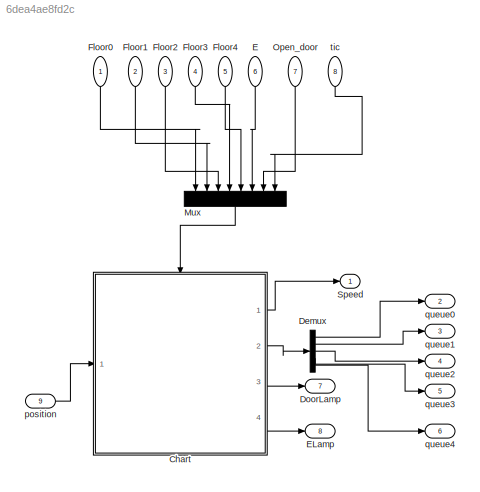
MODEL slx_6dea4ae8fd2c
KIND model
CONFIG AbsTol = auto
CONFIG EnableMultiTasking = off
CONFIG FixedStep = 0.1
CONFIG MaxStep = auto
CONFIG MinStep = auto
CONFIG RelTol = 1e-3
CONFIG SampleTimeConstraint = Unconstrained
CONFIG Solver = FixedStepAuto
CONFIG SolverName = FixedStepAuto
CONFIG StartTime = 0.0
CONFIG StopTime = inf
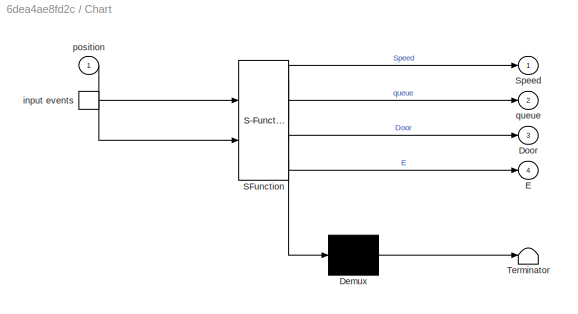
BLOCK [SubSystem] Chart
  ErrorFcn = Stateflow.Translate.translate
  PermitHierarchicalResolution = ExplicitOnly
  Ports = [1, 4, 0, 1]
  RequestExecContextInheritance = off
  SFBlockType = Chart
  TreatAsAtomicUnit = on
BLOCK [Demux] Chart/ Demux 
  Outputs = 1
  Ports = [1, 1]
BLOCK [S-Function] Chart/ SFunction 
  EnableBusSupport = on
  FunctionName = sf_sfun
  PortCounts = [2 5]
  Ports = [2, 5]
  SFcnIsStateOwnerBlock = off
  SFunctionDeploymentMode = off
  Tag = Stateflow S-Function 3
BLOCK [Terminator] Chart/ Terminator 
BLOCK [Outport] Chart/Door
  Port = 3
BLOCK [Outport] Chart/E
  Port = 4
BLOCK [Outport] Chart/Speed
BLOCK [TriggerPort] Chart/input events
  Ports = [0, 1]
  ShowOutputPort = on
  StatesWhenEnabling = held
  VariantControl = (inherit)
BLOCK [Inport] Chart/position
BLOCK [Outport] Chart/queue
  Port = 2
BLOCK [Demux] Demux
  Outputs = 5
  Ports = [1, 5]
BLOCK [Outport] DoorLamp
  Port = 7
BLOCK [Inport] E
  NameLocation = top
  Port = 6
BLOCK [Outport] ELamp
  Port = 8
BLOCK [Inport] Floor0
  NameLocation = top
BLOCK [Inport] Floor1
  NameLocation = top
  Port = 2
BLOCK [Inport] Floor2
  NameLocation = top
  Port = 3
BLOCK [Inport] Floor3
  NameLocation = top
  Port = 4
BLOCK [Inport] Floor4
  NameLocation = top
  Port = 5
BLOCK [Mux] Mux
  DisplayOption = bar
  Inputs = 8
  NameLocation = left
  Ports = [8, 1]
BLOCK [Inport] Open_door
  NameLocation = top
  Port = 7
BLOCK [Outport] Speed
BLOCK [Inport] position
  Port = 9
BLOCK [Outport] queue0
  Port = 2
BLOCK [Outport] queue1
  Port = 3
BLOCK [Outport] queue2
  Port = 4
BLOCK [Outport] queue3
  Port = 5
BLOCK [Outport] queue4
  Port = 6
BLOCK [Inport] tic
  NameLocation = top
  Port = 8
LINE Chart:1 -> Speed:1
LINE Chart:2 -> Demux:1
LINE Chart:3 -> DoorLamp:1
LINE Chart:4 -> ELamp:1
LINE Demux:1 -> queue0:1
LINE Demux:2 -> queue1:1
LINE Demux:3 -> queue2:1
LINE Demux:4 -> queue3:1
LINE Demux:5 -> queue4:1
LINE E:1 -> Mux:6
LINE Floor0:1 -> Mux:1
LINE Floor1:1 -> Mux:2
LINE Floor2:1 -> Mux:3
LINE Floor3:1 -> Mux:4
LINE Floor4:1 -> Mux:5
LINE Mux:1 -> Chart:trigger
LINE Open_door:1 -> Mux:7
LINE position:1 -> Chart:1
LINE tic:1 -> Mux:8
CHART Chart states=9 transitions=17
  STATE_LABEL 'out = floor_check'
  STATE_LABEL 'SCRIPT:\nfunction out = floor_check\nif dir>0\n    if queue(2)&& position<1\n        dest=2;\n        out=1;  \n    elseif queue(3) && position<2\n        dest=3;\n        out=1;\n    elseif queue(4)&& position<3\n        dest=4;\n        out=1;\n    elseif queue(5) && position~=4\n        dest=5;\n        out=1;\n    else\n        dir=0;\n        out=-1;\n    end\nelseif dir<0\n    if queue(4)&& position>3\n        d...<+1079ch>'
  STATE_LABEL 'Error_check'
  STATE_LABEL 'SCRIPT:\nfunction Error_check\ncur_pos=position;\nif position>4.1 && position<0\n    Speed=0;\nelseif (position==cur_pos + 0.5) || (position == cur_pos - 0.5)\n     Speed=0;\nelseif (Speed>0 || Speed<0) && Door==1\n    Speed=0;\n    Door=0;\nend\n        \n\n \n'
  STATE_LABEL 'o=current_floor'
  STATE_LABEL 'SCRIPT:\nfunction o=current_floor\nif dir==0\n    if queue(1) && queue(2)==0 && queue(3)==0 && queue(4)==0 && queue(5)==0 && position<1 && position>=0\n        o=1;\n        dest=1;\n    elseif queue(1)==0 && queue(2) && queue(3)==0 && queue(4)==0 && queue(5)==0 && position<2 && position>=1\n        o=1;\n        dest=2;\n    elseif queue(1)==0 && queue(2)==0 && queue(3) && queue(4)==0 && queue(5)==0 && po...<+362ch>'
  STATE_LABEL 'Init\non floor0: queue(1)=1;\non floor1: queue(2)=1;\non floor2: queue(3)=1;\non floor3: queue(4)=1;\non floor4: queue(5)=1;\non Open_doors: open_door=1;\ndu: Error_check();'
  STATE_LABEL 'Up\nSpeed=0.2;\ndir=1;\nfloor_check();'
  STATE_LABEL 'Door\nDoor=1;queue(dest)=0;\n'
  STATE_LABEL 'Idle_state\n'
  STATE_LABEL 'Emergency\nSpeed=0;'
  STATE_LABEL 'Down\nSpeed=-0.2;\ndir=-1;\nfloor_check();'
  STATE_LABEL '[current_floor()==1 || (open_door==1 && Speed==0)]{open_door=0;}'
  STATE_LABEL '[position>=dest-1]{Speed=0;}'
  STATE_LABEL '[floor_check==1]'
  STATE_LABEL 'Emergency{u=1;E=1;}'
  STATE_LABEL 'Emergency[u==1]{u=0;E=0;}'
  STATE_LABEL '[open_door==1]{open_door=0;}'
  STATE_LABEL 'Emergency{do=1;E=1;}'
  STATE_LABEL 'Emergency{i=1;E=1;}'
  STATE_LABEL 'Emergency[do==1]{do=0;E=0;}'
  STATE_LABEL 'Emergency[i==1]{E=0;i=0;}'
  STATE_LABEL '[position<=dest-0.98]{Speed=0;}'
  STATE_LABEL '[after(5,tic)]{Door=0;}'
  STATE_LABEL 'Emergency{d=1;E=1;}'
  STATE_LABEL 'Emergency[d==1]{d=0;E=0;}'
  STATE_LABEL '[floor_check==0]'
  STATE_LABEL 'Up\nSpeed=0.2;\ndir=1;\nfloor_check();'
  STATE_LABEL 'Door\nDoor=1;queue(dest)=0;\n'
  STATE_LABEL 'Idle_state\n'
  STATE_LABEL 'Emergency\nSpeed=0;'
  STATE_LABEL 'Down\nSpeed=-0.2;\ndir=-1;\nfloor_check();'
CHART  states=0 transitions=0
